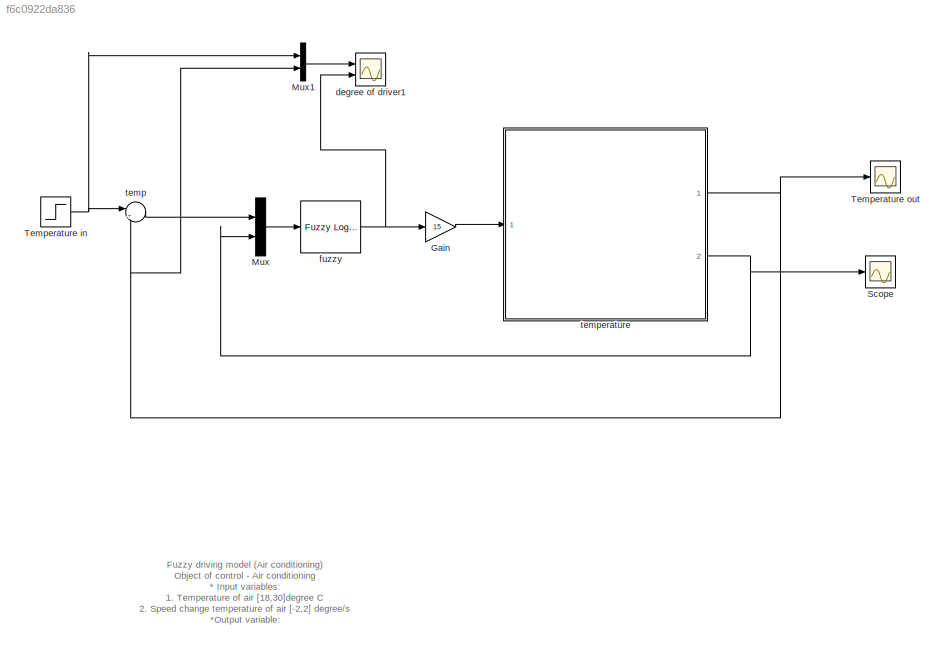
MODEL mdl_f6c0922da836
KIND model
CONFIG AbsTol = auto
CONFIG EnableMultiTasking = off
CONFIG FixedStep = auto
CONFIG MaxStep = auto
CONFIG MinStep = auto
CONFIG RelTol = 1e-3
CONFIG SampleTimeConstraint = Unconstrained
CONFIG SolverName = VariableStepAuto
CONFIG StartTime = 0.0
CONFIG StopTime = 100
BLOCK [Gain] Gain
  Gain = 15
BLOCK [Mux] Mux
  DisplayOption = bar
  Inputs = 2
  Ports = [2, 1]
BLOCK [Mux] Mux1
  DisplayOption = bar
  Inputs = 2
  Ports = [2, 1]
BLOCK [Scope] Scope
  Floating = off
  NumInputPorts = 1
  Ports = [1]
  ScopeSpecificationString = Simulink.scopes.TimeScopeBlockCfg('CurrentConfiguration', extmgr.ConfigurationSet(extmgr.Configuration('Core','General UI',true),extmgr.Configuration('Core','Source UI',true),extmgr.Configuration('Sources','WiredSimulink',true,'DataLoggingSaveFormat','StructureWithTime','DataLoggingLimitDataPoints',true,'DataLoggingDecimation','1','DataLoggingDecimateData',true),extmgr.Configuration('Visuals','Tim...<+1712ch>
BLOCK [Step] Temperature in
  After = 20
  Before = 25
  SampleTime = 0
  Time = 50
BLOCK [Scope] Temperature out
  Floating = off
  NumInputPorts = 1
  Ports = [1]
  ScopeSpecificationString = Simulink.scopes.TimeScopeBlockCfg('CurrentConfiguration', extmgr.ConfigurationSet(extmgr.Configuration('Core','General UI',true),extmgr.Configuration('Core','Source UI',true),extmgr.Configuration('Sources','WiredSimulink',true,'DataLoggingVariableName','ScopeData1','DataLoggingSaveFormat','StructureWithTime','DataLoggingDecimation','1','DataLoggingDecimateData',true),extmgr.Configuration('Visuals'...<+1748ch>
BLOCK [Scope] degree of driver1
  Floating = off
  NumInputPorts = 2
  Ports = [2]
  ScopeSpecificationString = Simulink.scopes.TimeScopeBlockCfg('CurrentConfiguration', extmgr.ConfigurationSet(extmgr.Configuration('Core','General UI',true,'FigureColor',[1 1 1]),extmgr.Configuration('Core','Source UI',true),extmgr.Configuration('Sources','WiredSimulink',true,'DataLoggingVariableName','ScopeData3','DataLoggingSaveFormat','StructureWithTime','DataLoggingDecimation','1','DataLoggingDecimateData',true),extmgr.C...<+2593ch>
BLOCK [Reference] fuzzy  REF=fuzblock/Fuzzy Logic   (lib defined in mdl_858b3b3e7478)
Controller
  Ports = [1, 1]
  SourceBlock = fuzblock/Fuzzy Logic \nController
  SourceProductBaseCode = FL
  SourceType = Fuzzy Inference System
BLOCK [Sum] temp
  Inputs = |+-
  Ports = [2, 1]
  SaturateOnIntegerOverflow = on
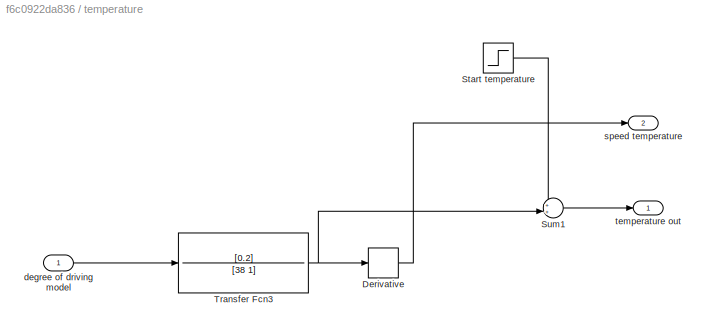
BLOCK [SubSystem] temperature
  Ports = [1, 2]
  RequestExecContextInheritance = off
BLOCK [Derivative] temperature/Derivative
BLOCK [Step] temperature/Start temperature
  After = 18
  SampleTime = 0
  Time = 0
BLOCK [Sum] temperature/Sum1
  Ports = [2, 1]
  SaturateOnIntegerOverflow = on
BLOCK [TransferFcn] temperature/Transfer Fcn3
  Denominator = [38 1]
  Numerator = [0.2]
BLOCK [Inport] temperature/degree of driving model
BLOCK [Outport] temperature/speed temperature
  Port = 2
BLOCK [Outport] temperature/temperature out
ANNOTATION (root): Fuzzy driving model (Air conditioning) Object of control - Air conditioning * Input variables: 1. Temperature of air [18,30]degree C 2. Speed change temperature of air [-2,2] degree/s *Output variable: + degree of driving model [-15,15]
LINE Gain:1 -> temperature:1
LINE Mux1:1 -> degree of driver1:1
LINE Mux:1 -> fuzzy:1
NET Temperature in:1 -> Mux1:1, temp:1
NET fuzzy:1 -> Gain:1, degree of driver1:2
LINE temp:1 -> Mux:1
LINE temperature/Derivative:1 -> temperature/speed temperature:1
LINE temperature/Start temperature:1 -> temperature/Sum1:1
LINE temperature/Sum1:1 -> temperature/temperature out:1
NET temperature/Transfer Fcn3:1 -> temperature/Derivative:1, temperature/Sum1:2
LINE temperature/degree of driving model:1 -> temperature/Transfer Fcn3:1
NET temperature:1 -> Mux1:2, Temperature out:1, temp:2
NET temperature:2 -> Mux:2, Scope:1
note: NET lines group one-source signal fan-out (src -> all destinations, sorted); 1:1 wires keep LINE
